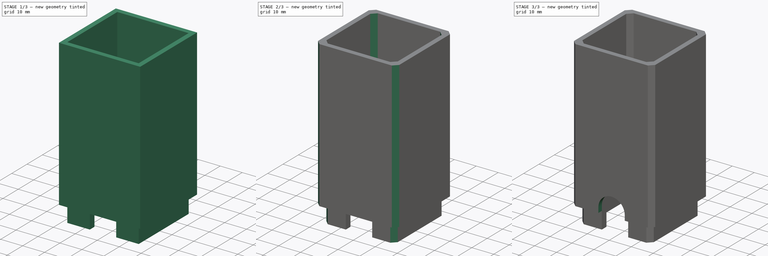
[diagram: build sequence overview — one tinted view per stage of 3, left to right]
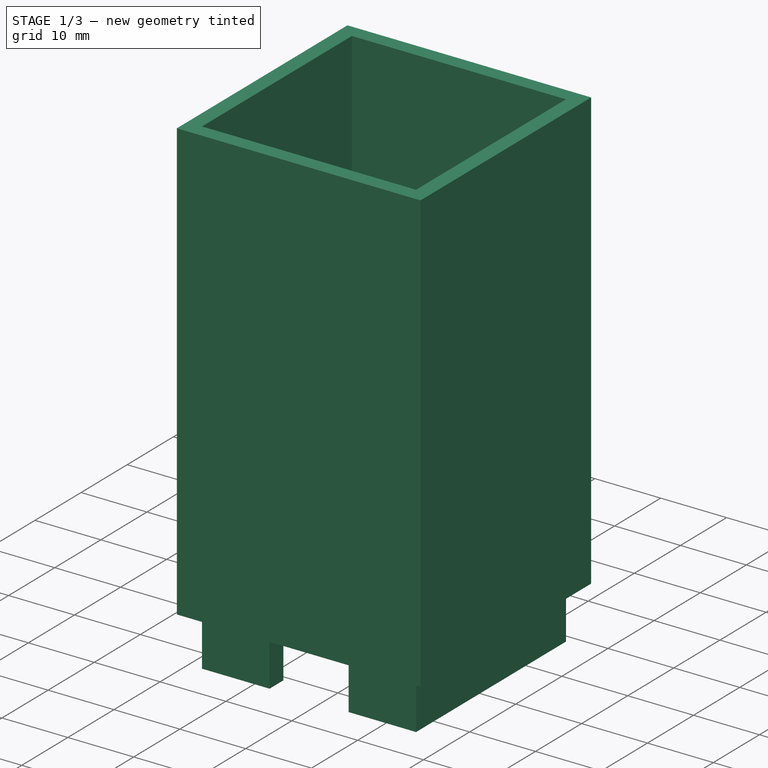
[diagram: stage 1 of 3 — iso view after this stage's code; geometry added in this stage tinted green]
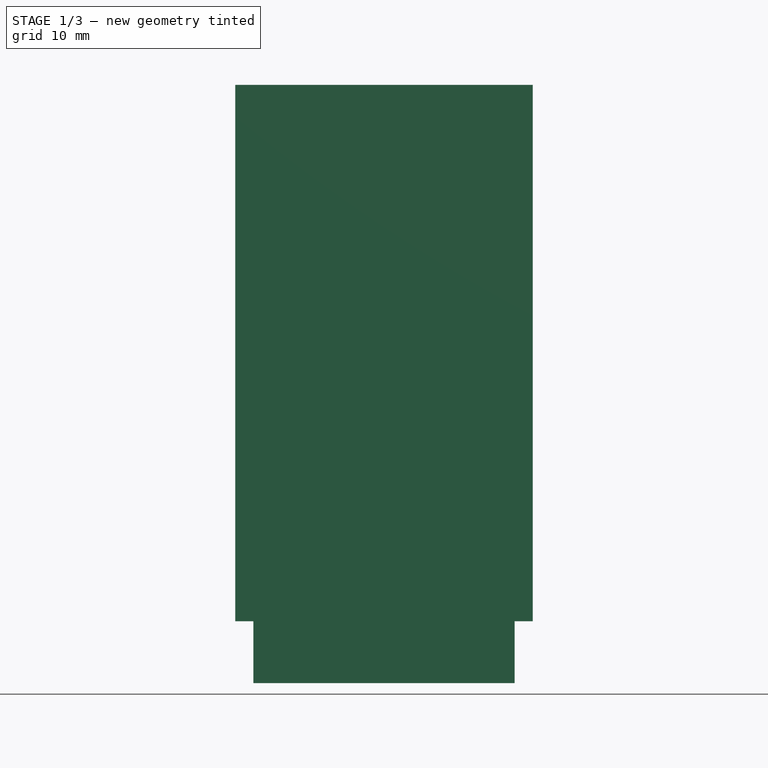
[diagram: stage 1 of 3 — front view after this stage's code; geometry added in this stage tinted green]
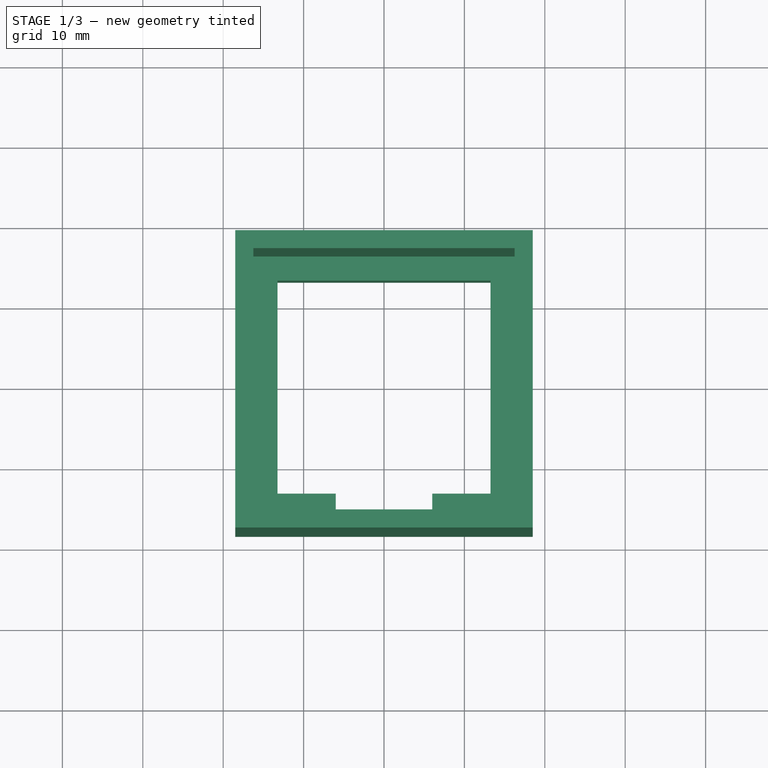
[diagram: stage 1 of 3 — top view after this stage's code; geometry added in this stage tinted green]
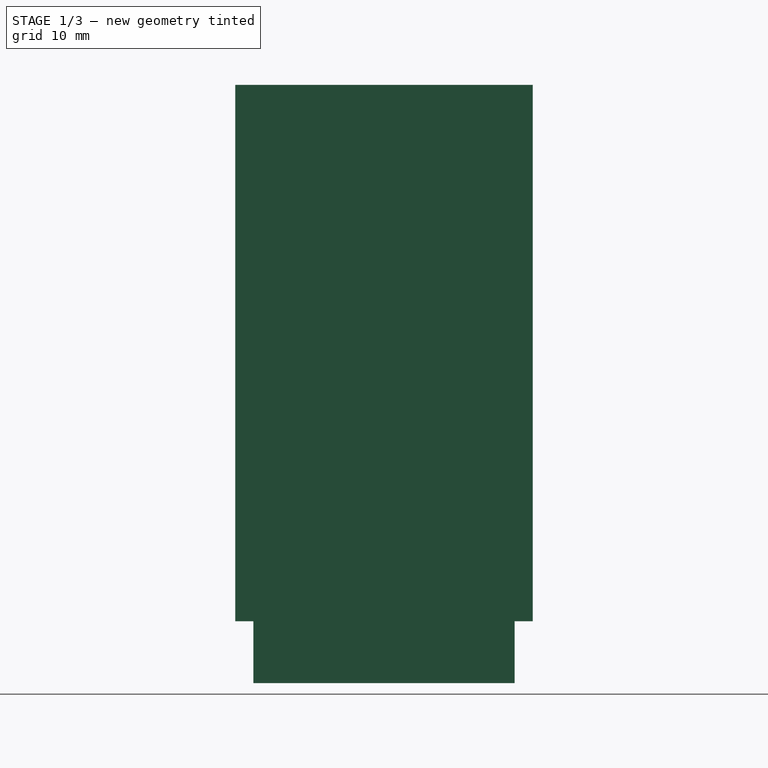
[diagram: stage 1 of 3 — right view after this stage's code; geometry added in this stage tinted green]
FCSTD DOCUMENT  (FreeCAD 0.19R24276 (Git))
Label: extended-foot
License: All rights reserved
LicenseURL: http://en.wikipedia.org/wiki/All_rights_reserved
objects: Sketcher::SketchObject×4, PartDesign::Pad×2, PartDesign::Chamfer×2, PartDesign::Pocket×2, PartDesign::Plane×1, PartDesign::Body×1
note: 18 computed .brp shape members not serialized (recipe doc carries the construction recipe); baked Part::Feature solids carry a one-line shape summary decoded from their .brp

FEATURE [Sketcher::SketchObject] Sketch006
  FullyConstrained = true
  MapMode = 5
  Support = -> [XY_Plane003]
  sketch-geometry (15):
    g0: LineSegment StartX=-16.25 StartY=16.25 StartZ=0 EndX=16.25 EndY=16.25 EndZ=0
    g1: LineSegment StartX=16.25 StartY=16.25 StartZ=0 EndX=16.25 EndY=-16.25 EndZ=0
    g2: LineSegment StartX=16.25 StartY=-16.25 StartZ=0 EndX=6 EndY=-16.25 EndZ=0
    g3: LineSegment StartX=-16.25 StartY=-16.25 StartZ=0 EndX=-16.25 EndY=16.25 EndZ=0
    g4: LineSegment StartX=-16.25 StartY=16.25 StartZ=0 EndX=16.25 EndY=-16.25 EndZ=0
    g5: LineSegment StartX=-13.25 StartY=13.25 StartZ=0 EndX=-13.25 EndY=-13.25 EndZ=0
    g6: LineSegment StartX=-13.25 StartY=-13.25 StartZ=0 EndX=-6 EndY=-13.25 EndZ=0
    g7: LineSegment StartX=13.25 StartY=-13.25 StartZ=0 EndX=13.25 EndY=13.25 EndZ=0
    g8: LineSegment StartX=13.25 StartY=13.25 StartZ=0 EndX=-13.25 EndY=13.25 EndZ=0
    g9: Circle CenterX=0 CenterY=0 CenterZ=0 NormalX=0 NormalY=0 NormalZ=1 AngleXU=0 Radius=18.7383
    g10: GeomPoint X=1.6e-15 Y=-16.25 Z=0
    g11: LineSegment StartX=-6 StartY=-13.25 StartZ=0 EndX=-6 EndY=-16.25 EndZ=0
    g12: LineSegment StartX=6 StartY=-16.25 StartZ=0 EndX=6 EndY=-13.25 EndZ=0
    g13: LineSegment StartX=6 StartY=-13.25 StartZ=0 EndX=13.25 EndY=-13.25 EndZ=0
    g14: LineSegment StartX=-6 StartY=-16.25 StartZ=0 EndX=-16.25 EndY=-16.25 EndZ=0
  constraints (39):
    c: Coincident(g0,g1)
    c: Coincident(g1,g2)
    c: Coincident(g14,g3)
    c: Coincident(g3,g0)
    c: Horizontal(g0)
    c: Horizontal(g2)
    c: Vertical(g1)
    c: Vertical(g3)
    c: Coincident(g4,g0)
    c: Coincident(g4,g1)
    c: Symmetric(g4,g4,g-1)
    c: Equal(g0,g3)
    c: Coincident(g5,g6)
    c: Coincident(g13,g7)
    c: Coincident(g7,g8)
    c: Coincident(g8,g5)
    c: Equal(g5,g7)
    c: Equal(g5,g8)
    c: PointOnObject(g5,g9)
    c: PointOnObject(g13,g9)
    c: PointOnObject(g7,g9)
    c: PointOnObject(g8,g9)
    c: Coincident(g9,g-1)
    c: PointOnObject(g8,g4)
    c: DistanceX(g0,g5) = 3
    c: DistanceX(g14,g1) = 32.5
    c: Symmetric(g2,g14,g10)
    c: Vertical(g11)
    c: DistanceX(g11,g12) = 12
    c: Coincident(g6,g11)
    c: Tangent(g6,g13)
    c: PointOnObject(g2,g12)
    c: Tangent(g2,g14)
    c: Coincident(g12,g13)
    c: Equal(g12,g11)
    c: Vertical(g12)
    c: Equal(g13,g6)
    c: Perpendicular(g5,g8)
    c: Coincident(g11,g14)
FEATURE [PartDesign::Pad] Pad003
  Direction = (1,1,1)
  Length = 15
  Length2 = 100
  Midplane = true
  Profile = -> Sketch006
  Type = 0
FEATURE [PartDesign::Plane] DatumPlane005
  AttachmentOffset = pos=(0,0,59.42) rot=(0,0,1;0rad)
  Length = 60
  MapMode = 5
  Placement = pos=(0,0,66.92) rot=(0,0,1;0rad)
  ResizeMode = 0
  Support = -> [Pad003]
  Width = 60
  expr: .AttachmentOffset.Base.z = 38.2 + 21.22
FEATURE [Sketcher::SketchObject] Sketch007
  FullyConstrained = true
  MapMode = 5
  Placement = pos=(0,0,66.92) rot=(0,0,1;0rad)
  Support = -> [DatumPlane005]
  sketch-geometry (10):
    g0: LineSegment StartX=-18.5 StartY=-18.5 StartZ=0 EndX=18.5 EndY=-18.5 EndZ=0
    g1: LineSegment StartX=18.5 StartY=-18.5 StartZ=0 EndX=18.5 EndY=18.5 EndZ=0
    g2: LineSegment StartX=18.5 StartY=18.5 StartZ=0 EndX=-18.5 EndY=18.5 EndZ=0
    g3: LineSegment StartX=-18.5 StartY=18.5 StartZ=0 EndX=-18.5 EndY=-18.5 EndZ=0
    g4: Circle CenterX=0 CenterY=0 CenterZ=0 NormalX=0 NormalY=0 NormalZ=1 AngleXU=0 Radius=26.163
    g5: LineSegment StartX=-16.25 StartY=-16.25 StartZ=0 EndX=16.25 EndY=-16.25 EndZ=0
    g6: LineSegment StartX=16.25 StartY=-16.25 StartZ=0 EndX=16.25 EndY=16.25 EndZ=0
    g7: LineSegment StartX=16.25 StartY=16.25 StartZ=0 EndX=-16.25 EndY=16.25 EndZ=0
    g8: LineSegment StartX=-16.25 StartY=16.25 StartZ=0 EndX=-16.25 EndY=-16.25 EndZ=0
    g9: Circle CenterX=0 CenterY=0 CenterZ=0 NormalX=0 NormalY=0 NormalZ=1 AngleXU=0 Radius=22.981
  constraints (28):
    c: Coincident(g0,g1)
    c: Coincident(g1,g2)
    c: Coincident(g2,g3)
    c: Coincident(g3,g0)
    c: Equal(g0,g1)
    c: Equal(g0,g2)
    c: Equal(g0,g3)
    c: PointOnObject(g0,g4)
    c: PointOnObject(g1,g4)
    c: PointOnObject(g2,g4)
    c: PointOnObject(g3,g4)
    c: Coincident(g4,g-1)
    c: Coincident(g5,g6)
    c: Coincident(g6,g7)
    c: Coincident(g7,g8)
    c: Coincident(g8,g5)
    c: Equal(g5,g6)
    c: Equal(g5,g7)
    c: Equal(g5,g8)
    c: PointOnObject(g5,g9)
    c: PointOnObject(g6,g9)
    c: PointOnObject(g7,g9)
    c: PointOnObject(g8,g9)
    c: Coincident(g9,g-1)
    c: Parallel(g5,g0)
    c: Horizontal(g5)
    c: DistanceX(g0,g0) = 37
    c: DistanceX(g5,g5) = 32.5
FEATURE [PartDesign::Pad] Pad004
  BaseFeature = -> Pad003
  Direction = (1,1,1)
  Length = 66.72
  Length2 = 100
  Profile = -> Sketch007
  Reversed = true
  Type = 0
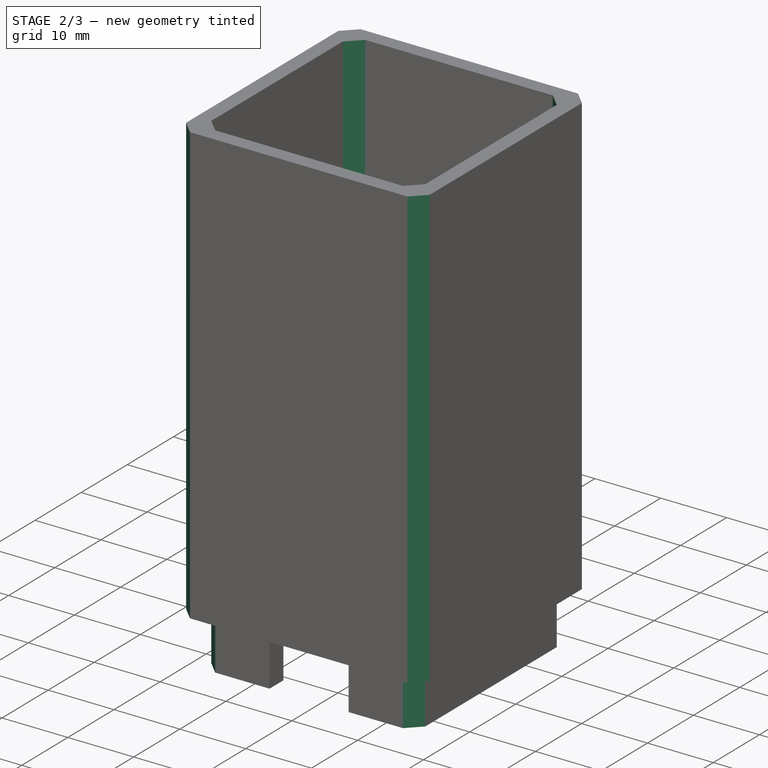
[diagram: stage 2 of 3 — iso view after this stage's code; geometry added in this stage tinted green]
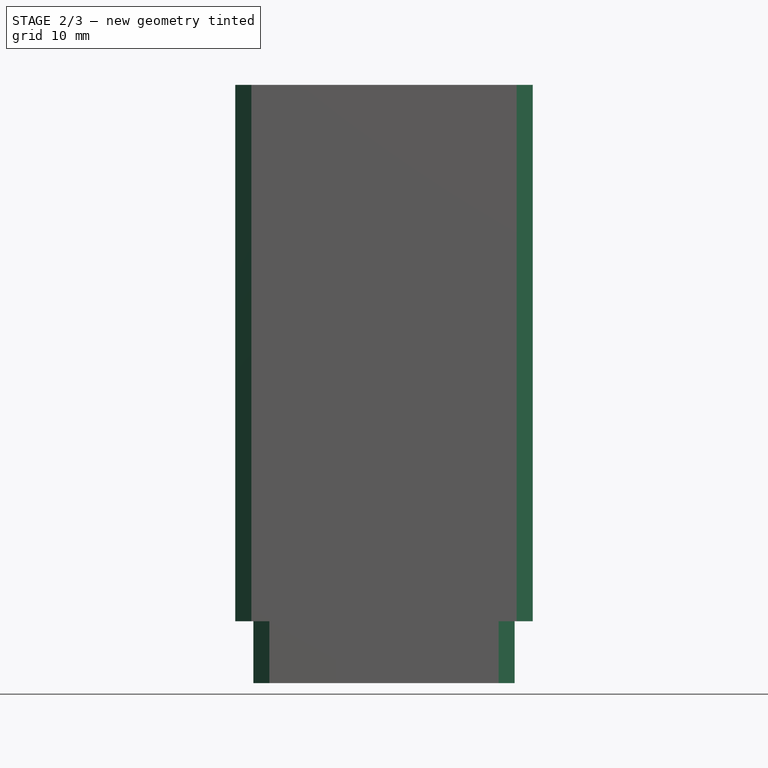
[diagram: stage 2 of 3 — front view after this stage's code; geometry added in this stage tinted green]
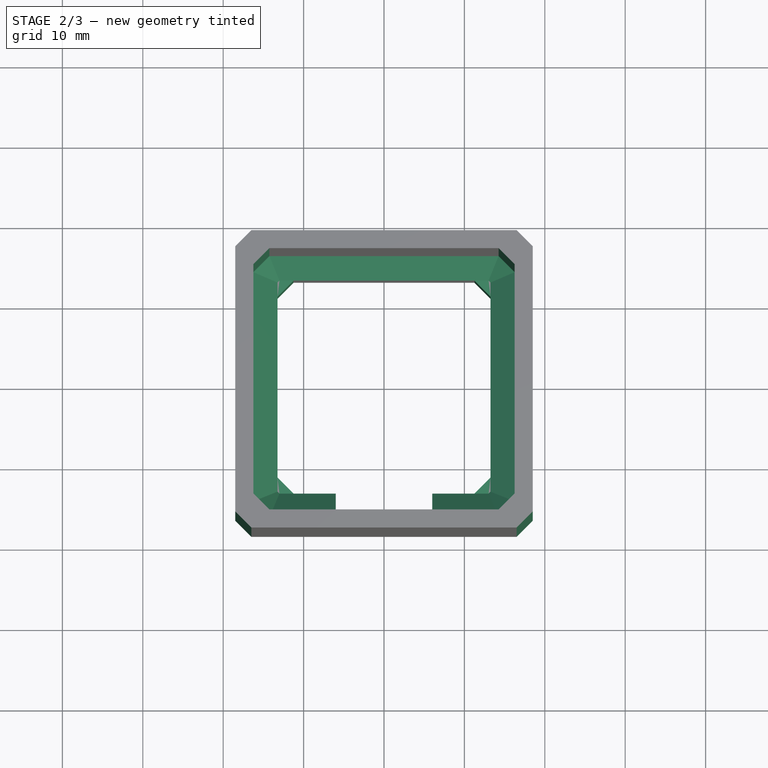
[diagram: stage 2 of 3 — top view after this stage's code; geometry added in this stage tinted green]
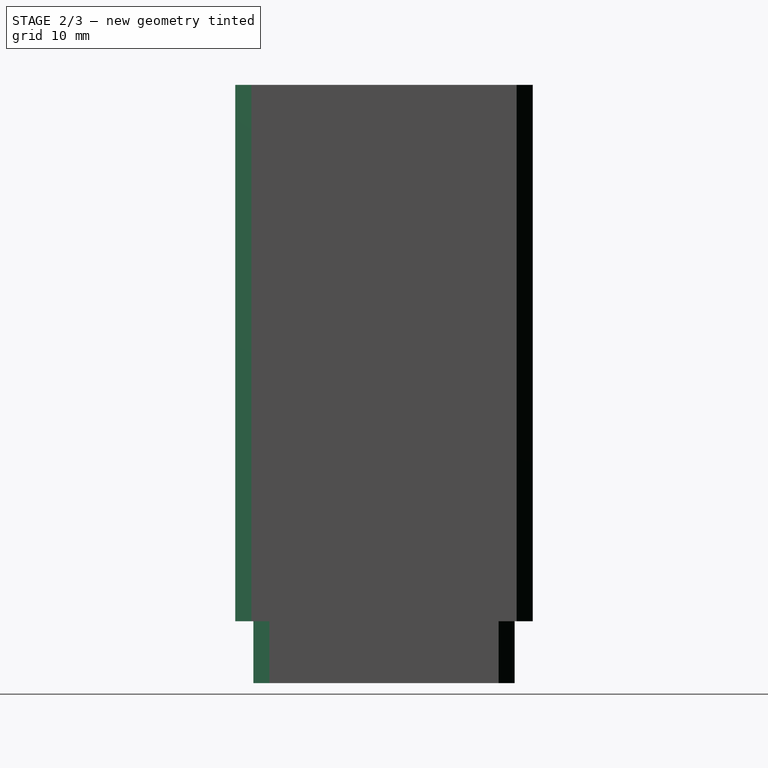
[diagram: stage 2 of 3 — right view after this stage's code; geometry added in this stage tinted green]
FEATURE [PartDesign::Chamfer] Chamfer
  Angle = 45
  Base = -> Pad004 [Edge45,Edge44,Edge49,Edge47,Edge56,Edge63,Edge53,Edge64,Edge35,Edge33,Edge31,Edge37,Edge16,Edge26,Edge4,Edge2]
  BaseFeature = -> Pad004
  ChamferType = 0
  FlipDirection = false
  Size = 2
  Size2 = 1
  SupportTransform = false
FEATURE [PartDesign::Chamfer] Chamfer001
  Angle = 45
  Base = -> Chamfer [Edge96,Edge94,Edge93,Edge95,Edge97,Edge99,Edge92,Edge98,Edge91]
  BaseFeature = -> Chamfer
  ChamferType = 0
  FlipDirection = false
  Size = 2.9999
  Size2 = 1
  SupportTransform = false
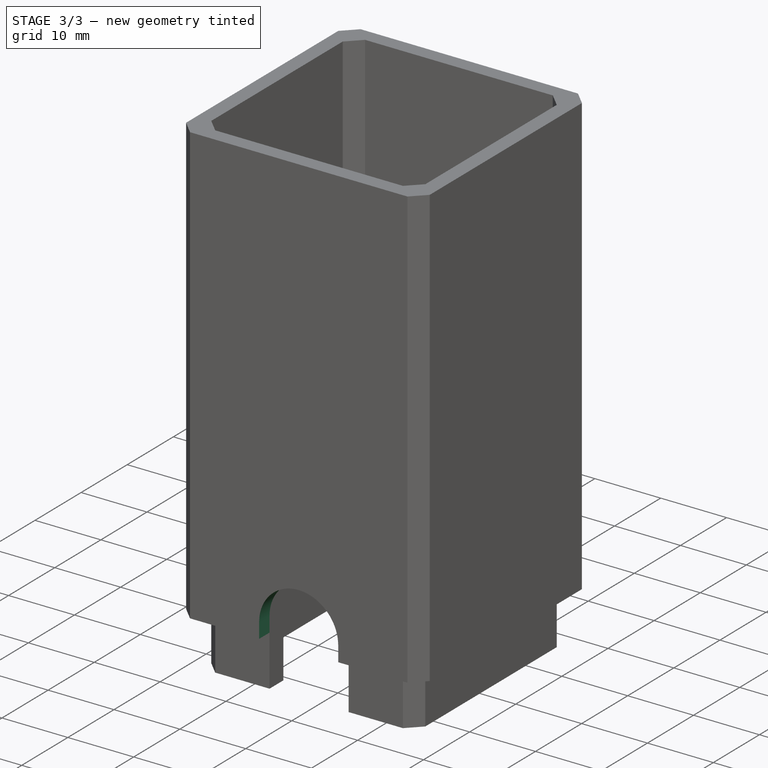
[diagram: stage 3 of 3 — iso view after this stage's code; geometry added in this stage tinted green]
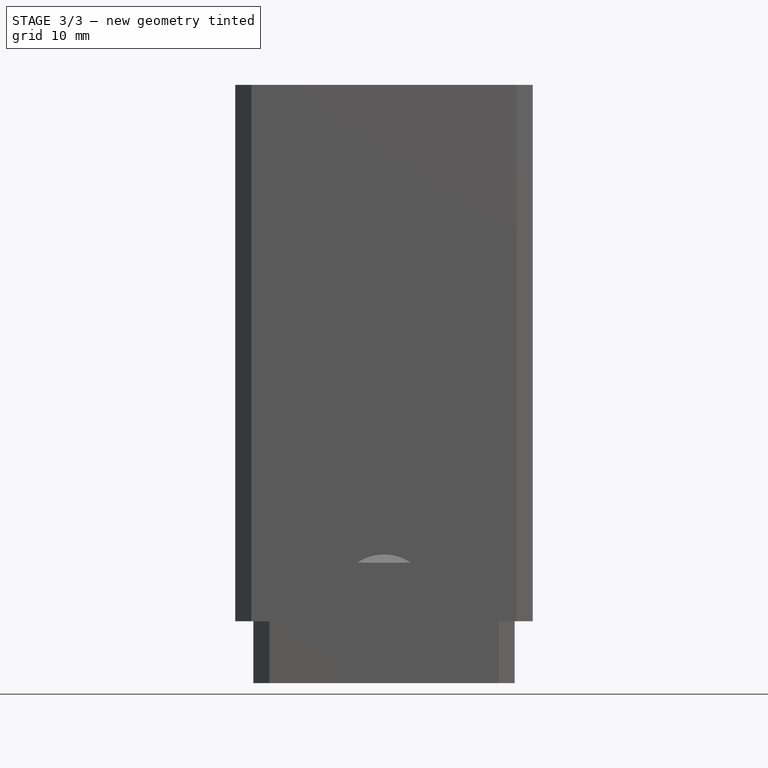
[diagram: stage 3 of 3 — front view after this stage's code; geometry added in this stage tinted green]
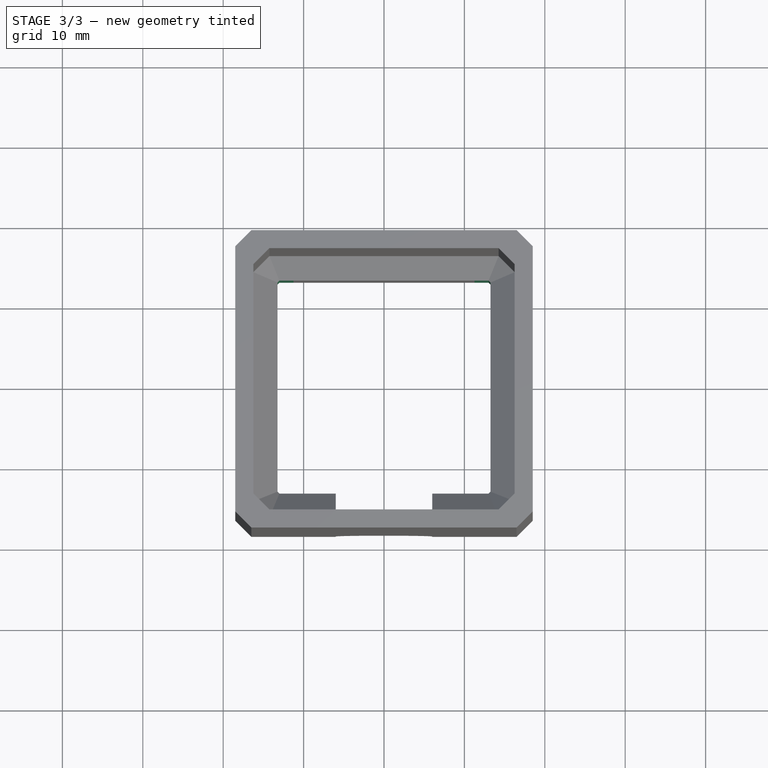
[diagram: stage 3 of 3 — top view after this stage's code; geometry added in this stage tinted green]
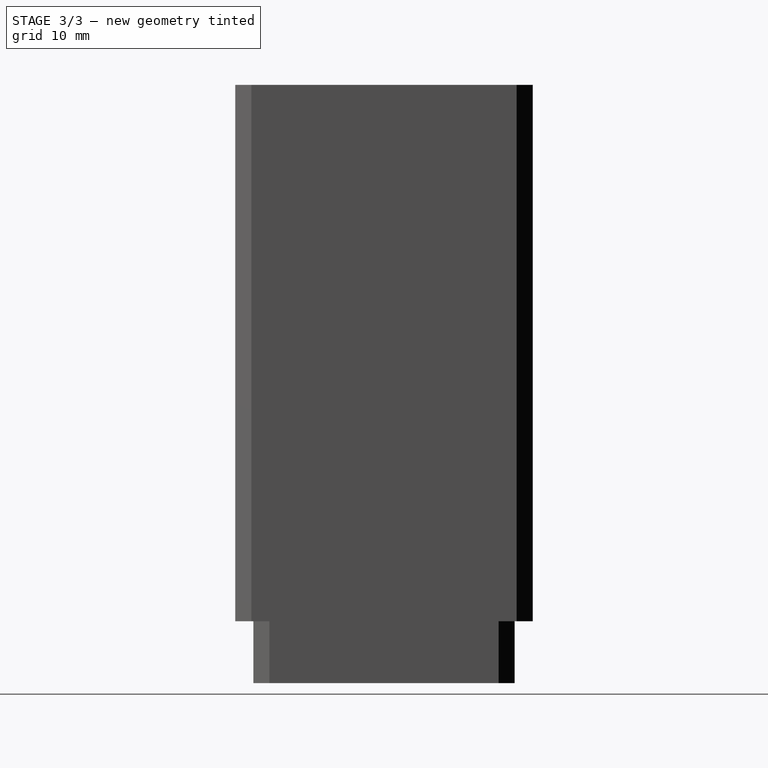
[diagram: stage 3 of 3 — right view after this stage's code; geometry added in this stage tinted green]
FEATURE [Sketcher::SketchObject] Sketch
  ExternalGeometry = -> [Chamfer001]
  FullyConstrained = true
  MapMode = 5
  Placement = pos=(0,0,66.92) rot=(0,0,1;0rad)
  Support = -> [DatumPlane005]
  sketch-geometry (16):
    g0: LineSegment StartX=-13.2501 StartY=-13.0074 StartZ=0 EndX=-13.25 EndY=-11.25 EndZ=0
    g1: LineSegment StartX=-13.0074 StartY=-13.2501 StartZ=0 EndX=-11.25 EndY=-13.25 EndZ=0
    g2: LineSegment StartX=11.25 StartY=-13.25 StartZ=0 EndX=13.0074 EndY=-13.2501 EndZ=0
    g3: LineSegment StartX=13.2501 StartY=-13.0074 StartZ=0 EndX=13.25 EndY=-11.25 EndZ=0
    g4: LineSegment StartX=11.25 StartY=-13.25 StartZ=0 EndX=13.25 EndY=-11.25 EndZ=0
    g5: LineSegment StartX=13.0074 StartY=-13.2501 StartZ=0 EndX=13.2501 EndY=-13.0074 EndZ=0
    g6: LineSegment StartX=-13.2501 StartY=-13.0074 StartZ=0 EndX=-13.0074 EndY=-13.2501 EndZ=0
    g7: LineSegment StartX=-13.25 StartY=-11.25 StartZ=0 EndX=-11.25 EndY=-13.25 EndZ=0
    g8: LineSegment StartX=-13.25 StartY=11.25 StartZ=0 EndX=-11.25 EndY=13.25 EndZ=0
    g9: LineSegment StartX=-11.25 StartY=13.25 StartZ=0 EndX=-13.0075 EndY=13.25 EndZ=0
    g10: LineSegment StartX=-13.0075 StartY=13.25 StartZ=0 EndX=-13.2501 EndY=13.0074 EndZ=0
    g11: LineSegment StartX=-13.2501 StartY=13.0074 StartZ=0 EndX=-13.25 EndY=11.25 EndZ=0
    g12: LineSegment StartX=11.25 StartY=13.25 StartZ=0 EndX=13.25 EndY=11.25 EndZ=0
    g13: LineSegment StartX=13.25 StartY=11.25 StartZ=0 EndX=13.2501 EndY=13.0074 EndZ=0
    g14: LineSegment StartX=13.2501 StartY=13.0074 StartZ=0 EndX=13.0074 EndY=13.2501 EndZ=0
    g15: LineSegment StartX=11.25 StartY=13.25 StartZ=0 EndX=13.0074 EndY=13.2501 EndZ=0
  constraints (33):
    c: Coincident(g0,g-6)
    c: Coincident(g0,g-7)
    c: Coincident(g1,g-6)
    c: Coincident(g1,g-7)
    c: Coincident(g2,g-8)
    c: Coincident(g2,g-9)
    c: Coincident(g3,g-9)
    c: Coincident(g3,g-8)
    c: Coincident(g4,g2)
    c: Coincident(g4,g3)
    c: Coincident(g5,g2)
    c: Coincident(g5,g3)
    c: Coincident(g6,g0)
    c: Coincident(g6,g1)
    c: Coincident(g7,g0)
    c: Coincident(g7,g1)
    c: Coincident(g8,g-3)
    c: Coincident(g8,g-3)
    c: Coincident(g9,g8)
    c: PointOnObject(g9,g-10)
    c: Horizontal(g9)
    c: Coincident(g10,g9)
    c: Coincident(g10,g-10)
    c: Coincident(g11,g10)
    c: Coincident(g11,g8)
    c: Coincident(g12,g-4)
    c: Coincident(g12,g-4)
    c: Coincident(g13,g12)
    c: Coincident(g13,g-5)
    c: Coincident(g14,g13)
    c: Coincident(g14,g-5)
    c: Coincident(g15,g12)
    c: Coincident(g15,g14)
FEATURE [PartDesign::Pocket] Pocket
  BaseFeature = -> Chamfer001
  Length = 5
  Length2 = 100
  Profile = -> Sketch
  Type = 1
FEATURE [Sketcher::SketchObject] Sketch008
  AttachmentOffset = pos=(0,-17.5,0) rot=(0,0,1;3.14159rad)
  FullyConstrained = true
  MapMode = 5
  Placement = pos=(0,3.9e-15,-17.5) rot=(0,-0.707107,0.707107;3.14159rad)
  Support = -> [XZ_Plane003]
  sketch-geometry (6):
    g0: LineSegment StartX=-6 StartY=-10 StartZ=0 EndX=6 EndY=-10 EndZ=0
    g1: LineSegment StartX=6 StartY=-10 StartZ=0 EndX=6 EndY=-20 EndZ=0
    g2: LineSegment StartX=8.48528 StartY=-20 StartZ=0 EndX=0 EndY=-28.4853 EndZ=0
    g3: LineSegment StartX=0 StartY=-28.4853 StartZ=0 EndX=-8.48528 EndY=-20 EndZ=0
    g4: LineSegment StartX=-6 StartY=-20 StartZ=0 EndX=-6 EndY=-10 EndZ=0
    g5: ArcOfCircle CenterX=-4e-16 CenterY=-20 CenterZ=0 NormalX=0 NormalY=0 NormalZ=1 AngleXU=0 Radius=6 StartAngle=3.14159 EndAngle=6.28319
  constraints (18):
    c: Coincident(g0,g1)
    c: Vertical(g1)
    c: PointOnObject(g2,g-2)
    c: Coincident(g2,g3)
    c: Coincident(g4,g0)
    c: Vertical(g4)
    c: Symmetric(g0,g0,g-2)
    c: Distance(g-1,g0) = 10
    c: DistanceY(g3,g4) = 10
    c: Perpendicular(g2,g3)
    c: DistanceX(g0,g0) = 12
    c: Tangent(g5,g2)
    c: Coincident(g5,g4)
    c: Tangent(g1,g5) = 1.5708
    c: Horizontal(g4,g5)
    c: Tangent(g3,g5)
    c: Equal(g2,g3)
    c: Horizontal(g3,g4)
FEATURE [PartDesign::Pocket] Pocket001
  BaseFeature = -> Pocket
  Length = 5
  Length2 = 100
  Profile = -> Sketch008
  Reversed = true
  Type = 1
FEATURE [PartDesign::Body] Body003  label="Body"
  Group = -> [Sketch006,Pad003,DatumPlane005,Sketch007,Pad004,Chamfer,Chamfer001,Sketch,Pocket,Sketch008,Pocket001]
  Origin = -> Origin003
  Tip = -> Pocket001
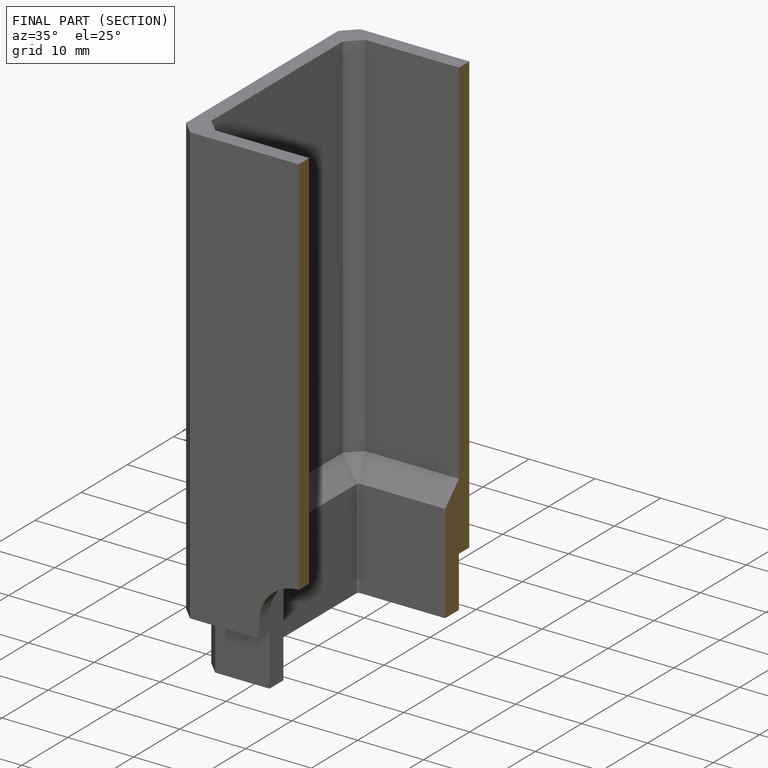
[diagram: finished part — half-section view (interior)]
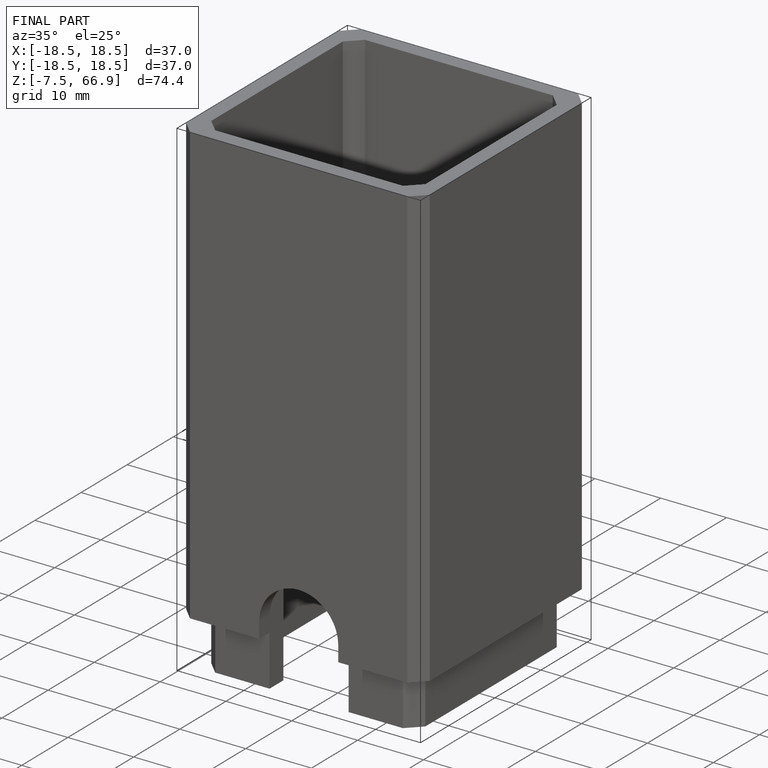
[diagram: finished part — iso view with bounding-box wireframe]
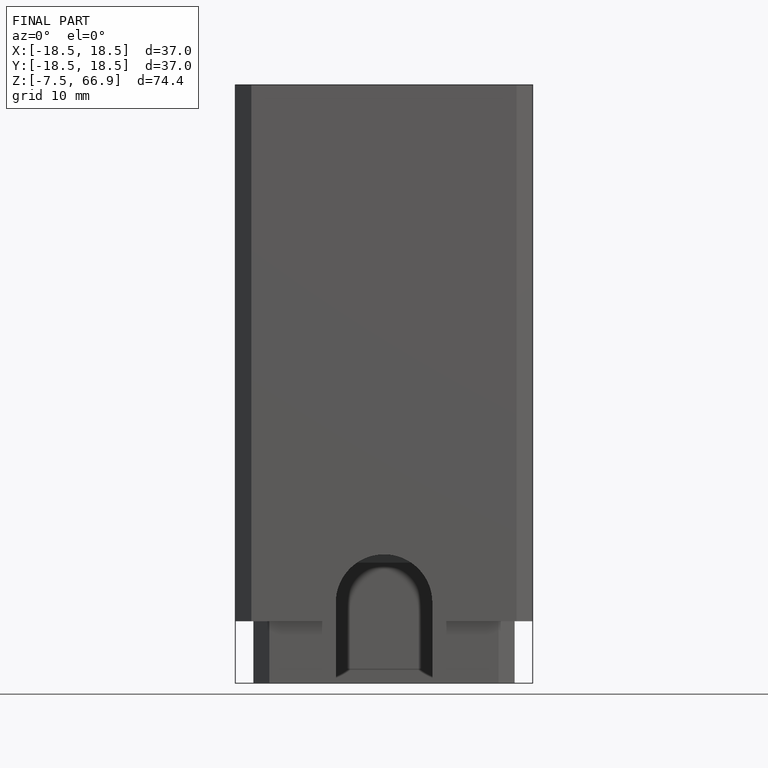
[diagram: finished part — front view with bounding-box wireframe]
